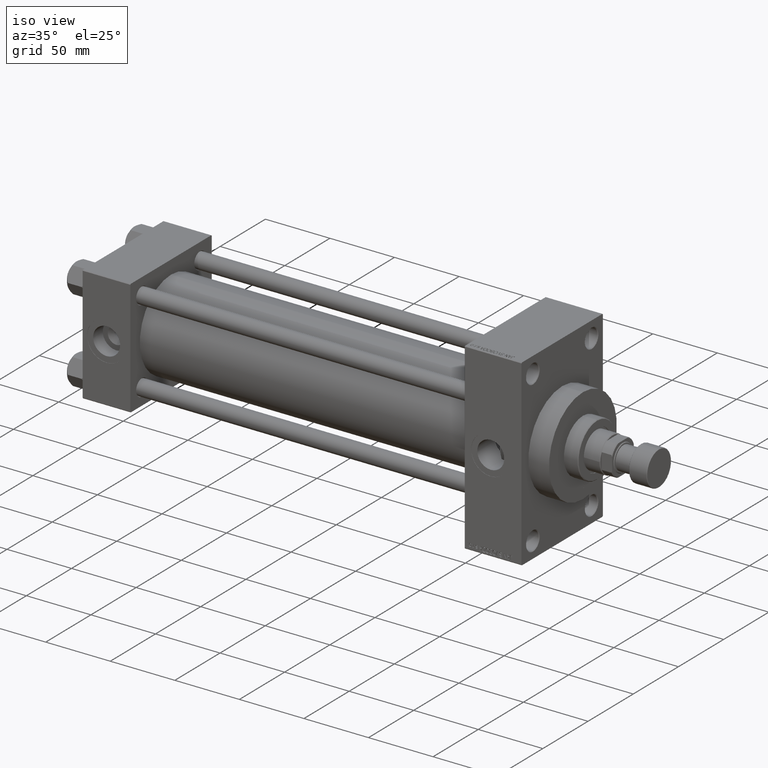
[diagram: clean part render]
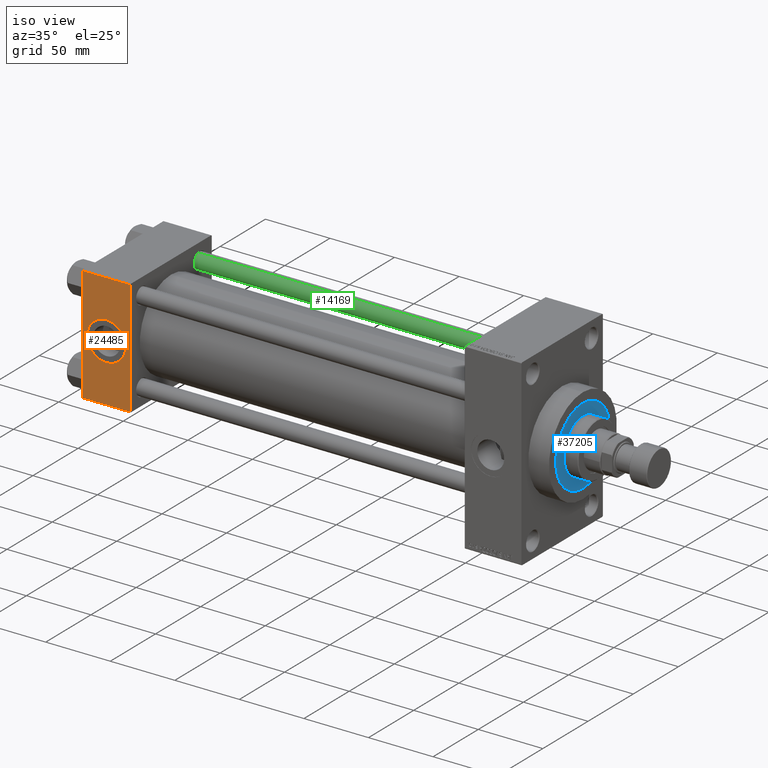
[diagram: same view with three faces highlighted in distinct colors, each labeled with its STEP entity id]
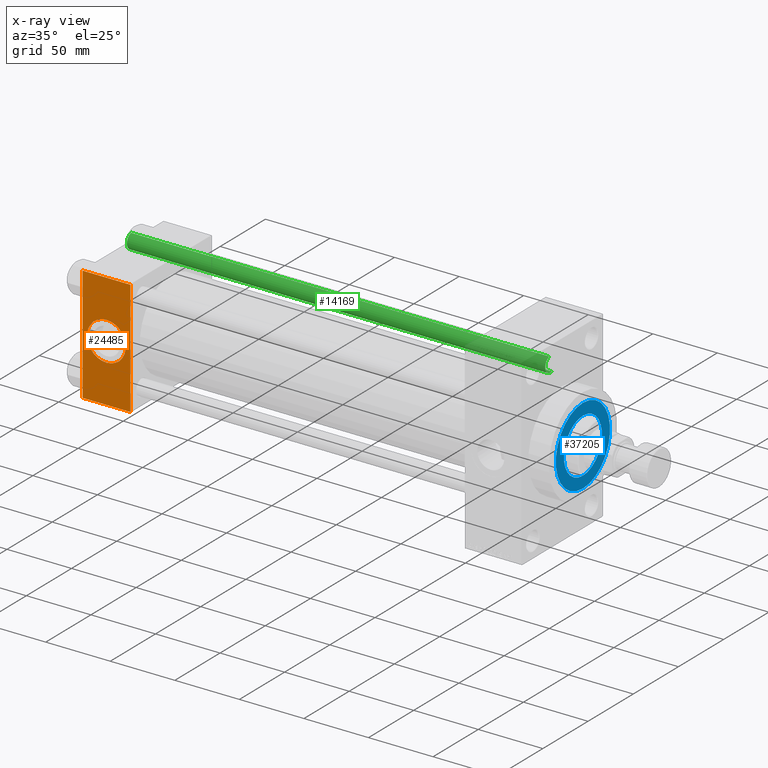
[diagram: x-ray of the same camera — body ghosted, the three highlighted faces saturated]
A machine part, iso view with three faces highlighted in distinct colors.
The next image is the same camera in x-ray (body ghosted, the three faces saturated) — at least one of them is partly hidden behind the body in this view.
Their STEP definitions:

[orange] entity #24485 — the highlighted planar face has unit normal (0, 1, 0).
#766 = VERTEX_POINT ( 'NONE', #9257 ) ;
#797 = VERTEX_POINT ( 'NONE', #34910 ) ;
#1201 = ORIENTED_EDGE ( 'NONE', *, *, #16662, .F. ) ;
#2532 = DIRECTION ( 'NONE',  ( 0.000000000000000000, -1.000000000000000000, -8.673617379884036705E-17 ) ) ;
#3910 = EDGE_CURVE ( 'NONE', #12880, #34564, #9841, .T. ) ;
#5379 = CARTESIAN_POINT ( 'NONE',  ( 18.50000000000000000, -45.00000000000000000, -15.00000000000000533 ) ) ;
#5504 = VERTEX_POINT ( 'NONE', #5379 ) ;
#5518 = ORIENTED_EDGE ( 'NONE', *, *, #20036, .T. ) ;
#5572 = FACE_OUTER_BOUND ( 'NONE', #14795, .T. ) ;
#5755 = VECTOR ( 'NONE', #9458, 1000.000000000000000 ) ;
#5790 = VERTEX_POINT ( 'NONE', #34759 ) ;
#8410 = EDGE_CURVE ( 'NONE', #766, #5504, #23022, .T. ) ;
#9257 = CARTESIAN_POINT ( 'NONE',  ( 18.50000000000000355, -45.00000000000000000, 14.99999999999999822 ) ) ;
#9458 = DIRECTION ( 'NONE',  ( 1.000000000000000000, 0.000000000000000000, 0.000000000000000000 ) ) ;
#9841 = LINE ( 'NONE', #25062, #28433 ) ;
#10722 = DIRECTION ( 'NONE',  ( 0.000000000000000000, 0.000000000000000000, -1.000000000000000000 ) ) ;
#10765 = CARTESIAN_POINT ( 'NONE',  ( 18.50000000000000000, -45.00000000000000000, -3.469446951953614978E-15 ) ) ;
#12880 = VERTEX_POINT ( 'NONE', #36967 ) ;
#14795 = EDGE_LOOP ( 'NONE', ( #22120, #5518, #1201, #38517 ) ) ;
#16662 = EDGE_CURVE ( 'NONE', #797, #5790, #30854, .T. ) ;
#17639 = VECTOR ( 'NONE', #46850, 1000.000000000000000 ) ;
#17695 = CARTESIAN_POINT ( 'NONE',  ( 37.00000000000000000, -45.00000000000000000, -44.49999999999998579 ) ) ;
#17926 = CARTESIAN_POINT ( 'NONE',  ( 37.00000000000000000, -45.00000000000000711, 44.49999999999997158 ) ) ;
#18210 = CARTESIAN_POINT ( 'NONE',  ( 18.50000000000000000, -45.00000000000000000, -3.469446951953614978E-15 ) ) ;
#18250 = DIRECTION ( 'NONE',  ( 0.000000000000000000, 0.000000000000000000, -1.000000000000000000 ) ) ;
#18691 = VECTOR ( 'NONE', #44651, 1000.000000000000000 ) ;
#19945 = ORIENTED_EDGE ( 'NONE', *, *, #32131, .F. ) ;
#20036 = EDGE_CURVE ( 'NONE', #34564, #5790, #36909, .T. ) ;
#20262 = AXIS2_PLACEMENT_3D ( 'NONE', #10765, #2532, #18250 ) ;
#20805 = CARTESIAN_POINT ( 'NONE',  ( 37.00000000000000000, -45.00000000000000711, 45.00000000000000000 ) ) ;
#21025 = CIRCLE ( 'NONE', #20262, 15.00000000000000178 ) ;
#21663 = LINE ( 'NONE', #17926, #18691 ) ;
#22120 = ORIENTED_EDGE ( 'NONE', *, *, #3910, .T. ) ;
#23022 = CIRCLE ( 'NONE', #25401, 15.00000000000000178 ) ;
#24485 = ADVANCED_FACE ( 'NONE', ( #39797, #5572 ), #32301, .F. ) ;
#24790 = DIRECTION ( 'NONE',  ( -0.000000000000000000, 1.000000000000000000, 7.709882115452478166E-17 ) ) ;
#25062 = CARTESIAN_POINT ( 'NONE',  ( 0.000000000000000000, -45.00000000000000711, 45.00000000000000000 ) ) ;
#25401 = AXIS2_PLACEMENT_3D ( 'NONE', #18210, #44942, #10722 ) ;
#28433 = VECTOR ( 'NONE', #36809, 1000.000000000000000 ) ;
#30270 = EDGE_CURVE ( 'NONE', #797, #12880, #21663, .T. ) ;
#30854 = LINE ( 'NONE', #43103, #17639 ) ;
#32131 = EDGE_CURVE ( 'NONE', #5504, #766, #21025, .T. ) ;
#32301 = PLANE ( 'NONE',  #42519 ) ;
#34564 = VERTEX_POINT ( 'NONE', #36585 ) ;
#34759 = CARTESIAN_POINT ( 'NONE',  ( 37.00000000000000000, -45.00000000000000000, -44.49999999999995737 ) ) ;
#34910 = CARTESIAN_POINT ( 'NONE',  ( 37.00000000000000000, -45.00000000000000711, 44.49999999999997158 ) ) ;
#36585 = CARTESIAN_POINT ( 'NONE',  ( 0.000000000000000000, -45.00000000000000000, -44.49999999999995737 ) ) ;
#36809 = DIRECTION ( 'NONE',  ( 0.000000000000000000, 7.709882115452476934E-17, -1.000000000000000000 ) ) ;
#36909 = LINE ( 'NONE', #17695, #5755 ) ;
#36967 = CARTESIAN_POINT ( 'NONE',  ( 0.000000000000000000, -45.00000000000000711, 44.49999999999997158 ) ) ;
#38517 = ORIENTED_EDGE ( 'NONE', *, *, #30270, .T. ) ;
#39797 = FACE_BOUND ( 'NONE', #49386, .T. ) ;
#40042 = DIRECTION ( 'NONE',  ( 0.000000000000000000, -7.709882115452478166E-17, 1.000000000000000000 ) ) ;
#42519 = AXIS2_PLACEMENT_3D ( 'NONE', #20805, #24790, #40042 ) ;
#43103 = CARTESIAN_POINT ( 'NONE',  ( 37.00000000000000000, -45.00000000000000711, 45.00000000000000000 ) ) ;
#43402 = ORIENTED_EDGE ( 'NONE', *, *, #8410, .F. ) ;
#44651 = DIRECTION ( 'NONE',  ( -1.000000000000000000, 0.000000000000000000, 0.000000000000000000 ) ) ;
#44942 = DIRECTION ( 'NONE',  ( 0.000000000000000000, -1.000000000000000000, -8.673617379884036705E-17 ) ) ;
#46850 = DIRECTION ( 'NONE',  ( 0.000000000000000000, 7.709882115452476934E-17, -1.000000000000000000 ) ) ;
#49386 = EDGE_LOOP ( 'NONE', ( #19945, #43402 ) ) ;

[blue] entity #37205 — the highlighted planar face has unit normal (1, -0, -0).
#707 = VERTEX_POINT ( 'NONE', #47468 ) ;
#3109 = FACE_OUTER_BOUND ( 'NONE', #3359, .T. ) ;
#3359 = EDGE_LOOP ( 'NONE', ( #28950, #11532 ) ) ;
#3852 = DIRECTION ( 'NONE',  ( 1.000000000000000000, 0.000000000000000000, -0.000000000000000000 ) ) ;
#4829 = VERTEX_POINT ( 'NONE', #27054 ) ;
#6392 = AXIS2_PLACEMENT_3D ( 'NONE', #46482, #15758, #23482 ) ;
#6921 = CARTESIAN_POINT ( 'NONE',  ( 0.000000000000000000, 0.000000000000000000, 43.25999999999999801 ) ) ;
#7431 = DIRECTION ( 'NONE',  ( 1.000000000000000000, 0.000000000000000000, 0.000000000000000000 ) ) ;
#9410 = CIRCLE ( 'NONE', #43716, 30.00000000000000000 ) ;
#10186 = EDGE_CURVE ( 'NONE', #13756, #10738, #37304, .T. ) ;
#10406 = DIRECTION ( 'NONE',  ( 1.000000000000000000, 0.000000000000000000, 0.000000000000000000 ) ) ;
#10738 = VERTEX_POINT ( 'NONE', #25802 ) ;
#11532 = ORIENTED_EDGE ( 'NONE', *, *, #44732, .T. ) ;
#11816 = DIRECTION ( 'NONE',  ( 0.000000000000000000, 0.000000000000000000, 1.000000000000000000 ) ) ;
#12110 = ORIENTED_EDGE ( 'NONE', *, *, #10186, .F. ) ;
#12558 = DIRECTION ( 'NONE',  ( 1.000000000000000000, 0.000000000000000000, 0.000000000000000000 ) ) ;
#13756 = VERTEX_POINT ( 'NONE', #32798 ) ;
#15362 = AXIS2_PLACEMENT_3D ( 'NONE', #6921, #34168, #7431 ) ;
#15758 = DIRECTION ( 'NONE',  ( 0.000000000000000000, 0.000000000000000000, 1.000000000000000000 ) ) ;
#15790 = AXIS2_PLACEMENT_3D ( 'NONE', #21393, #40142, #10406 ) ;
#16097 = EDGE_CURVE ( 'NONE', #707, #4829, #35148, .T. ) ;
#18588 = DIRECTION ( 'NONE',  ( 0.000000000000000000, 0.000000000000000000, 1.000000000000000000 ) ) ;
#19306 = CIRCLE ( 'NONE', #15362, 21.00000000000000000 ) ;
#20157 = EDGE_CURVE ( 'NONE', #10738, #13756, #19306, .T. ) ;
#21393 = CARTESIAN_POINT ( 'NONE',  ( 0.000000000000000000, 0.000000000000000000, 43.25999999999999801 ) ) ;
#22925 = ORIENTED_EDGE ( 'NONE', *, *, #20157, .F. ) ;
#23482 = DIRECTION ( 'NONE',  ( 1.000000000000000000, 0.000000000000000000, 0.000000000000000000 ) ) ;
#25802 = CARTESIAN_POINT ( 'NONE',  ( -21.00000000000000000, 0.000000000000000000, 43.25999999999999801 ) ) ;
#26071 = FACE_BOUND ( 'NONE', #39226, .T. ) ;
#27054 = CARTESIAN_POINT ( 'NONE',  ( 30.00000000000000000, 3.673940397442059178E-15, 43.25999999999999801 ) ) ;
#28950 = ORIENTED_EDGE ( 'NONE', *, *, #16097, .T. ) ;
#29583 = CARTESIAN_POINT ( 'NONE',  ( 0.000000000000000000, 0.000000000000000000, 43.25999999999999801 ) ) ;
#30331 = PLANE ( 'NONE',  #33993 ) ;
#32798 = CARTESIAN_POINT ( 'NONE',  ( 21.00000000000000000, 2.571758278209441661E-15, 43.25999999999999801 ) ) ;
#33993 = AXIS2_PLACEMENT_3D ( 'NONE', #29583, #18588, #3852 ) ;
#34168 = DIRECTION ( 'NONE',  ( 0.000000000000000000, 0.000000000000000000, 1.000000000000000000 ) ) ;
#35148 = CIRCLE ( 'NONE', #6392, 30.00000000000000000 ) ;
#37205 = ADVANCED_FACE ( 'NONE', ( #26071, #3109 ), #30331, .T. ) ;
#37304 = CIRCLE ( 'NONE', #15790, 21.00000000000000000 ) ;
#39226 = EDGE_LOOP ( 'NONE', ( #22925, #12110 ) ) ;
#40142 = DIRECTION ( 'NONE',  ( 0.000000000000000000, 0.000000000000000000, 1.000000000000000000 ) ) ;
#42281 = CARTESIAN_POINT ( 'NONE',  ( 0.000000000000000000, 0.000000000000000000, 43.25999999999999801 ) ) ;
#43716 = AXIS2_PLACEMENT_3D ( 'NONE', #42281, #11816, #12558 ) ;
#44732 = EDGE_CURVE ( 'NONE', #4829, #707, #9410, .T. ) ;
#46482 = CARTESIAN_POINT ( 'NONE',  ( 0.000000000000000000, 0.000000000000000000, 43.25999999999999801 ) ) ;
#47468 = CARTESIAN_POINT ( 'NONE',  ( -30.00000000000000000, 0.000000000000000000, 43.25999999999999801 ) ) ;

[green] entity #14169 — the highlighted cylindrical surface (edge-blend (fillet) strip) has radius 6 mm, axis along (-1, -0, 0).
#5043 = DIRECTION ( 'NONE',  ( 0.000000000000000000, 0.000000000000000000, -1.000000000000000000 ) ) ;
#7296 = CARTESIAN_POINT ( 'NONE',  ( -6.000000000000000888, 0.000000000000000000, 0.5000000000000004441 ) ) ;
#8278 = VERTEX_POINT ( 'NONE', #43713 ) ;
#8931 = DIRECTION ( 'NONE',  ( -0.000000000000000000, -0.000000000000000000, 1.000000000000000000 ) ) ;
#9405 = DIRECTION ( 'NONE',  ( 1.000000000000000000, 0.000000000000000000, 0.000000000000000000 ) ) ;
#10801 = VECTOR ( 'NONE', #32607, 1000.000000000000000 ) ;
#11635 = CIRCLE ( 'NONE', #18791, 6.000000000000000888 ) ;
#12386 = ORIENTED_EDGE ( 'NONE', *, *, #36723, .T. ) ;
#12682 = FACE_OUTER_BOUND ( 'NONE', #13052, .T. ) ;
#12772 = AXIS2_PLACEMENT_3D ( 'NONE', #43871, #17642, #39630 ) ;
#13052 = EDGE_LOOP ( 'NONE', ( #48187, #12386, #42788, #28489 ) ) ;
#13897 = CYLINDRICAL_SURFACE ( 'NONE', #12772, 6.000000000000000888 ) ;
#14158 = AXIS2_PLACEMENT_3D ( 'NONE', #16908, #8931, #9405 ) ;
#14169 = ADVANCED_FACE ( 'NONE', ( #12682 ), #13897, .T. ) ;
#15743 = DIRECTION ( 'NONE',  ( -0.000000000000000000, -0.000000000000000000, -1.000000000000000000 ) ) ;
#16673 = LINE ( 'NONE', #23225, #22953 ) ;
#16908 = CARTESIAN_POINT ( 'NONE',  ( 0.000000000000000000, 0.000000000000000000, 0.5000000000000004441 ) ) ;
#17125 = CARTESIAN_POINT ( 'NONE',  ( -6.000000000000000888, 0.000000000000000000, 325.0000000000000000 ) ) ;
#17642 = DIRECTION ( 'NONE',  ( -0.000000000000000000, -0.000000000000000000, -1.000000000000000000 ) ) ;
#18791 = AXIS2_PLACEMENT_3D ( 'NONE', #35271, #5043, #20752 ) ;
#19685 = VERTEX_POINT ( 'NONE', #7296 ) ;
#20752 = DIRECTION ( 'NONE',  ( 1.000000000000000000, 0.000000000000000000, 0.000000000000000000 ) ) ;
#22953 = VECTOR ( 'NONE', #15743, 1000.000000000000000 ) ;
#23225 = CARTESIAN_POINT ( 'NONE',  ( 6.000000000000000888, 7.347880794884120722E-16, 325.0000000000000000 ) ) ;
#26223 = CARTESIAN_POINT ( 'NONE',  ( 6.000000000000000888, 7.347880794884120722E-16, 0.5000000000000004441 ) ) ;
#28489 = ORIENTED_EDGE ( 'NONE', *, *, #40559, .T. ) ;
#28604 = LINE ( 'NONE', #17125, #10801 ) ;
#32607 = DIRECTION ( 'NONE',  ( -0.000000000000000000, -0.000000000000000000, -1.000000000000000000 ) ) ;
#35271 = CARTESIAN_POINT ( 'NONE',  ( 0.000000000000000000, 0.000000000000000000, 324.5000000000001137 ) ) ;
#35582 = EDGE_CURVE ( 'NONE', #43740, #19685, #28604, .T. ) ;
#36723 = EDGE_CURVE ( 'NONE', #8278, #43740, #11635, .T. ) ;
#36939 = VERTEX_POINT ( 'NONE', #26223 ) ;
#39630 = DIRECTION ( 'NONE',  ( -1.000000000000000000, 0.000000000000000000, 0.000000000000000000 ) ) ;
#39683 = CIRCLE ( 'NONE', #14158, 6.000000000000000888 ) ;
#40559 = EDGE_CURVE ( 'NONE', #19685, #36939, #39683, .T. ) ;
#42788 = ORIENTED_EDGE ( 'NONE', *, *, #35582, .T. ) ;
#43627 = CARTESIAN_POINT ( 'NONE',  ( -6.000000000000000888, 0.000000000000000000, 324.5000000000001137 ) ) ;
#43713 = CARTESIAN_POINT ( 'NONE',  ( 6.000000000000000888, 7.347880794884120722E-16, 324.5000000000001137 ) ) ;
#43740 = VERTEX_POINT ( 'NONE', #43627 ) ;
#43871 = CARTESIAN_POINT ( 'NONE',  ( 0.000000000000000000, 0.000000000000000000, 325.0000000000000000 ) ) ;
#44954 = EDGE_CURVE ( 'NONE', #8278, #36939, #16673, .T. ) ;
#48187 = ORIENTED_EDGE ( 'NONE', *, *, #44954, .F. ) ;